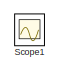
[diagram: root canvas - part 1/2, top left region]
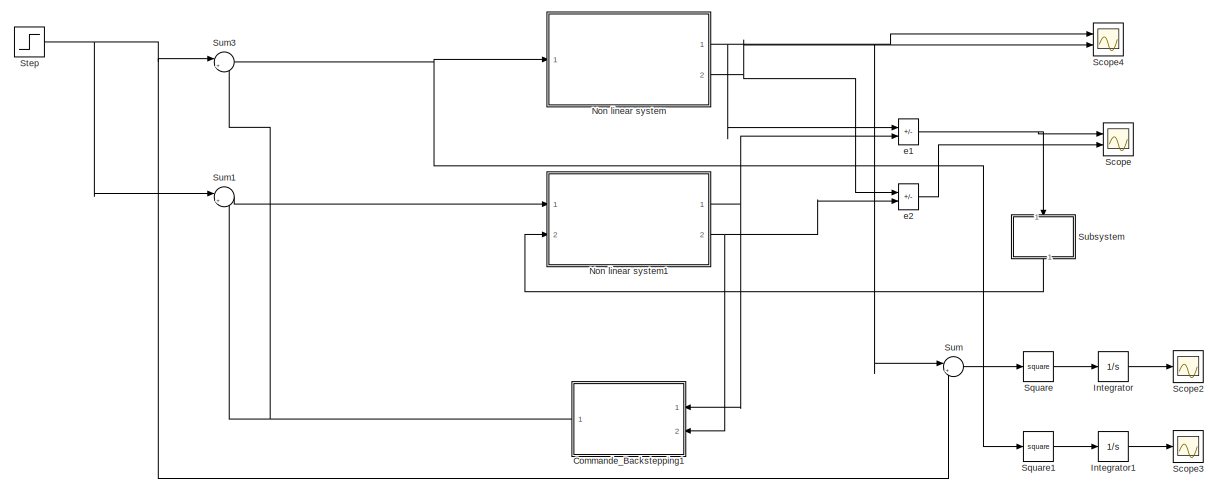
[diagram: root canvas - part 2/2, bottom right region]
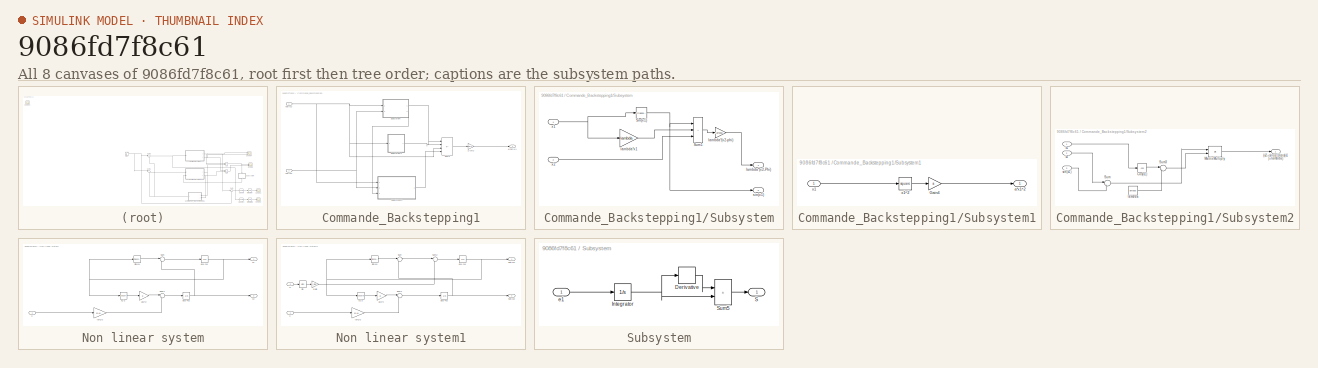
[diagram: thumbnail index - all 8 canvases of the model, root first then tree order]
MODEL slx_9086fd7f8c61
KIND model
CONFIG AbsTol = auto
CONFIG EnableMultiTasking = off
CONFIG FixedStep = auto
CONFIG MaxStep = auto
CONFIG MinStep = auto
CONFIG RelTol = 1e-3
CONFIG SampleTimeConstraint = Unconstrained
CONFIG Solver = VariableStepAuto
CONFIG SolverName = VariableStepAuto
CONFIG StartTime = 0.0
CONFIG StopTime = 10
BLOCK [SubSystem] Commande_Backstepping1
  NameLocation = top
  Ports = [2, 1]
  RequestExecContextInheritance = off
BLOCK [Gain] Commande_Backstepping1/1//(b+1)
  Gain = 1/(b+1)
BLOCK [SubSystem] Commande_Backstepping1/Subsystem
  Ports = [2, 2]
  RequestExecContextInheritance = off
BLOCK [Trigonometry] Commande_Backstepping1/Subsystem/Sin(x1)
  Ports = [1, 1]
BLOCK [Sum] Commande_Backstepping1/Subsystem/Sum1
  IconShape = rectangular
  Inputs = |+++
  Ports = [3, 1]
BLOCK [Outport] Commande_Backstepping1/Subsystem/lambda*(x2-Phi)
BLOCK [Gain] Commande_Backstepping1/Subsystem/lambda*(x2-phi)
  Gain = lambda
BLOCK [Gain] Commande_Backstepping1/Subsystem/lambda*x1
  Gain = lambda
BLOCK [Outport] Commande_Backstepping1/Subsystem/sin(x1)
  Port = 2
BLOCK [Inport] Commande_Backstepping1/Subsystem/x1
BLOCK [Inport] Commande_Backstepping1/Subsystem/x2
  Port = 2
BLOCK [SubSystem] Commande_Backstepping1/Subsystem1
  Ports = [1, 1]
  RequestExecContextInheritance = off
BLOCK [Gain] Commande_Backstepping1/Subsystem1/Gain4
  Gain = a
BLOCK [Outport] Commande_Backstepping1/Subsystem1/a*x1^2
BLOCK [Inport] Commande_Backstepping1/Subsystem1/x1 
BLOCK [Math] Commande_Backstepping1/Subsystem1/x1^2
  Operator = square
  Ports = [1, 1]
BLOCK [SubSystem] Commande_Backstepping1/Subsystem2
  Ports = [3, 1]
  RequestExecContextInheritance = off
BLOCK [Outport] Commande_Backstepping1/Subsystem2/(x2+sin(x1))(cos(x1)+lambda)
BLOCK [Trigonometry] Commande_Backstepping1/Subsystem2/Cos(x1)
  Operator = cos
  Ports = [1, 1]
BLOCK [Product] Commande_Backstepping1/Subsystem2/Matrix Multiply
  Ports = [2, 1]
BLOCK [Sum] Commande_Backstepping1/Subsystem2/Sum
  Inputs = |++
  Ports = [2, 1]
BLOCK [Sum] Commande_Backstepping1/Subsystem2/Sum3
  Inputs = |++
  Ports = [2, 1]
BLOCK [Constant] Commande_Backstepping1/Subsystem2/lambda
  OutDataTypeStr = Inherit: Inherit via back propagation
  Value = lambda
BLOCK [Inport] Commande_Backstepping1/Subsystem2/sin(x1)
  Port = 3
BLOCK [Inport] Commande_Backstepping1/Subsystem2/x1 
BLOCK [Inport] Commande_Backstepping1/Subsystem2/x2
  Port = 2
BLOCK [Sum] Commande_Backstepping1/Sum2
  IconShape = rectangular
  Inputs = |----
  Ports = [4, 1]
BLOCK [Inport] Commande_Backstepping1/hat(x1)
BLOCK [Inport] Commande_Backstepping1/hat(x2)
  Port = 2
BLOCK [Outport] Commande_Backstepping1/u(hat(x))
BLOCK [Integrator] Integrator
  Ports = [1, 1]
BLOCK [Integrator] Integrator1
  Ports = [1, 1]
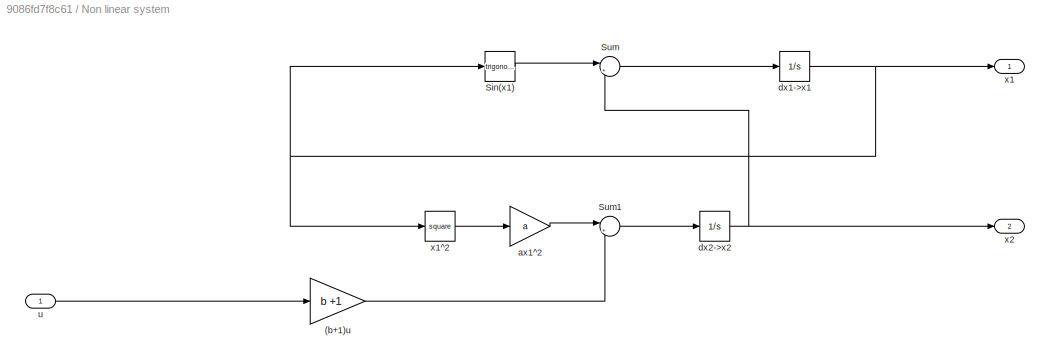
BLOCK [SubSystem] Non linear system
  Ports = [1, 2]
  RequestExecContextInheritance = off
BLOCK [Gain] Non linear system/(b+1)u
  Gain = b +1
BLOCK [Trigonometry] Non linear system/Sin(x1)
  Ports = [1, 1]
BLOCK [Sum] Non linear system/Sum
  Inputs = |++
  Ports = [2, 1]
BLOCK [Sum] Non linear system/Sum1
  Inputs = |++
  Ports = [2, 1]
BLOCK [Gain] Non linear system/ax1^2
  Gain = a
BLOCK [Integrator] Non linear system/dx1->x1
  Ports = [1, 1]
BLOCK [Integrator] Non linear system/dx2->x2
  Ports = [1, 1]
BLOCK [Inport] Non linear system/u
BLOCK [Outport] Non linear system/x1
BLOCK [Math] Non linear system/x1^2
  Operator = square
  Ports = [1, 1]
BLOCK [Outport] Non linear system/x2
  Port = 2
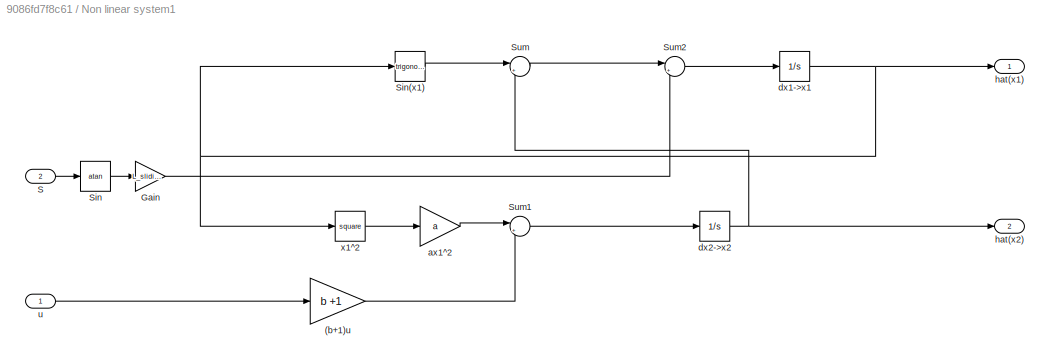
BLOCK [SubSystem] Non linear system1
  Ports = [2, 2]
  RequestExecContextInheritance = off
BLOCK [Gain] Non linear system1/(b+1)u
  Gain = b +1
BLOCK [Gain] Non linear system1/Gain
  Gain = L_sliding_back
BLOCK [Inport] Non linear system1/S
  Port = 2
BLOCK [Trigonometry] Non linear system1/Sin
  Operator = atan
  Ports = [1, 1]
BLOCK [Trigonometry] Non linear system1/Sin(x1)
  Ports = [1, 1]
BLOCK [Sum] Non linear system1/Sum
  Inputs = |++
  Ports = [2, 1]
BLOCK [Sum] Non linear system1/Sum1
  Inputs = |++
  Ports = [2, 1]
BLOCK [Sum] Non linear system1/Sum2
  Inputs = |++
  Ports = [2, 1]
BLOCK [Gain] Non linear system1/ax1^2
  Gain = a
BLOCK [Integrator] Non linear system1/dx1->x1
  InitialCondition = 1
  Ports = [1, 1]
BLOCK [Integrator] Non linear system1/dx2->x2
  InitialCondition = 1
  Ports = [1, 1]
BLOCK [Outport] Non linear system1/hat(x1)
BLOCK [Outport] Non linear system1/hat(x2)
  Port = 2
BLOCK [Inport] Non linear system1/u
BLOCK [Math] Non linear system1/x1^2
  Operator = square
  Ports = [1, 1]
BLOCK [Scope] Scope
  Floating = off
  NumInputPorts = 2
  Ports = [2]
  ScopeSpecificationString = Simulink.scopes.TimeScopeBlockCfg('CurrentConfiguration', extmgr.ConfigurationSet(extmgr.Configuration('Core','General UI',true),extmgr.Configuration('Core','Source UI',true),extmgr.Configuration('Sources','WiredSimulink',true,'DataLoggingVariableName','ScopeData1'),extmgr.Configuration('Visuals','Time Domain',true,'SerializedDisplays',{struct('MinYLimReal','-1.20483','MaxYLimReal','0.14572','YLab...<+1364ch>
BLOCK [Scope] Scope1
  Commented = on
  Floating = off
  NumInputPorts = 1
  Ports = [1]
  ScopeSpecificationString = Simulink.scopes.TimeScopeBlockCfg('CurrentConfiguration', extmgr.ConfigurationSet(extmgr.Configuration('Core','General UI',true),extmgr.Configuration('Core','Source UI',true),extmgr.Configuration('Sources','WiredSimulink',true),extmgr.Configuration('Visuals','Time Domain',true,'SerializedDisplays',{struct('MinYLimReal','-0.43357','MaxYLimReal','1.71484','YLabelReal','','MinYLimMag','0.00000','MaxY...<+1320ch>
BLOCK [Scope] Scope2
  Floating = off
  NumInputPorts = 1
  Ports = [1]
  ScopeSpecificationString = Simulink.scopes.TimeScopeBlockCfg('CurrentConfiguration', extmgr.ConfigurationSet(extmgr.Configuration('Core','General UI',true),extmgr.Configuration('Core','Source UI',true),extmgr.Configuration('Sources','WiredSimulink',true,'DataLoggingVariableName','ScopeData1'),extmgr.Configuration('Visuals','Time Domain',true,'SerializedDisplays',{struct('MinYLimReal','-0.31713','MaxYLimReal','2.8542','YLabe...<+1365ch>
BLOCK [Scope] Scope3
  Floating = off
  NumInputPorts = 1
  Ports = [1]
  ScopeSpecificationString = Simulink.scopes.TimeScopeBlockCfg('CurrentConfiguration', extmgr.ConfigurationSet(extmgr.Configuration('Core','General UI',true),extmgr.Configuration('Core','Source UI',true),extmgr.Configuration('Sources','WiredSimulink',true,'DataLoggingVariableName','ScopeData2'),extmgr.Configuration('Visuals','Time Domain',true,'SerializedDisplays',{struct('MinYLimReal','-0.09495','MaxYLimReal','0.85457','YLab...<+1370ch>
BLOCK [Scope] Scope4
  Floating = off
  NumInputPorts = 2
  Ports = [2]
  ScopeSpecificationString = Simulink.scopes.TimeScopeBlockCfg('CurrentConfiguration', extmgr.ConfigurationSet(extmgr.Configuration('Core','General UI',true),extmgr.Configuration('Core','Source UI',true),extmgr.Configuration('Sources','WiredSimulink',true,'DataLoggingVariableName','ScopeData1'),extmgr.Configuration('Visuals','Time Domain',true,'SerializedDisplays',{struct('MinYLimReal','-0.72457','MaxYLimReal','0.72027','YLab...<+1400ch>
BLOCK [Math] Square
  Operator = square
  Ports = [1, 1]
BLOCK [Math] Square1
  Operator = square
  Ports = [1, 1]
BLOCK [Step] Step
  SampleTime = 0
  Time = 0
BLOCK [SubSystem] Subsystem
  NameLocation = left
  Ports = [1, 1]
  RequestExecContextInheritance = off
BLOCK [Derivative] Subsystem/Derivative
BLOCK [Integrator] Subsystem/Integrator
  Ports = [1, 1]
BLOCK [Outport] Subsystem/S
BLOCK [Sum] Subsystem/Sum5
  IconShape = rectangular
  Inputs = |++
  Ports = [2, 1]
BLOCK [Inport] Subsystem/e1
BLOCK [Sum] Sum
  Inputs = |++
  Ports = [2, 1]
BLOCK [Sum] Sum1
  Inputs = |++
  Ports = [2, 1]
BLOCK [Sum] Sum3
  Inputs = |++
  Ports = [2, 1]
BLOCK [Sum] e1
  IconShape = rectangular
  Inputs = |+-
  Ports = [2, 1]
BLOCK [Sum] e2
  IconShape = rectangular
  Inputs = |+-
  Ports = [2, 1]
LINE Commande_Backstepping1/1//(b+1):1 -> Commande_Backstepping1/u(hat(x)):1
NET Commande_Backstepping1/Subsystem/Sin(x1):1 -> Commande_Backstepping1/Subsystem/Sum1:1, Commande_Backstepping1/Subsystem/sin(x1):1
LINE Commande_Backstepping1/Subsystem/Sum1:1 -> Commande_Backstepping1/Subsystem/lambda*(x2-phi):1
LINE Commande_Backstepping1/Subsystem/lambda*(x2-phi):1 -> Commande_Backstepping1/Subsystem/lambda*(x2-Phi):1
LINE Commande_Backstepping1/Subsystem/lambda*x1:1 -> Commande_Backstepping1/Subsystem/Sum1:2
NET Commande_Backstepping1/Subsystem/x1:1 -> Commande_Backstepping1/Subsystem/Sin(x1):1, Commande_Backstepping1/Subsystem/lambda*x1:1
LINE Commande_Backstepping1/Subsystem/x2:1 -> Commande_Backstepping1/Subsystem/Sum1:3
LINE Commande_Backstepping1/Subsystem1/Gain4:1 -> Commande_Backstepping1/Subsystem1/a*x1^2:1
LINE Commande_Backstepping1/Subsystem1/x1 :1 -> Commande_Backstepping1/Subsystem1/x1^2:1
LINE Commande_Backstepping1/Subsystem1/x1^2:1 -> Commande_Backstepping1/Subsystem1/Gain4:1
LINE Commande_Backstepping1/Subsystem1:1 -> Commande_Backstepping1/Sum2:2
LINE Commande_Backstepping1/Subsystem2/Cos(x1):1 -> Commande_Backstepping1/Subsystem2/Sum3:1
LINE Commande_Backstepping1/Subsystem2/Matrix Multiply:1 -> Commande_Backstepping1/Subsystem2/(x2+sin(x1))(cos(x1)+lambda):1
LINE Commande_Backstepping1/Subsystem2/Sum3:1 -> Commande_Backstepping1/Subsystem2/Matrix Multiply:2
LINE Commande_Backstepping1/Subsystem2/Sum:1 -> Commande_Backstepping1/Subsystem2/Matrix Multiply:1
LINE Commande_Backstepping1/Subsystem2/lambda:1 -> Commande_Backstepping1/Subsystem2/Sum3:2
LINE Commande_Backstepping1/Subsystem2/sin(x1):1 -> Commande_Backstepping1/Subsystem2/Sum:2
LINE Commande_Backstepping1/Subsystem2/x1 :1 -> Commande_Backstepping1/Subsystem2/Cos(x1):1
LINE Commande_Backstepping1/Subsystem2/x2:1 -> Commande_Backstepping1/Subsystem2/Sum:1
LINE Commande_Backstepping1/Subsystem2:1 -> Commande_Backstepping1/Sum2:4
LINE Commande_Backstepping1/Subsystem:1 -> Commande_Backstepping1/Sum2:1
LINE Commande_Backstepping1/Subsystem:2 -> Commande_Backstepping1/Subsystem2:3
LINE Commande_Backstepping1/Sum2:1 -> Commande_Backstepping1/1//(b+1):1
NET Commande_Backstepping1/hat(x1):1 -> Commande_Backstepping1/Subsystem1:1, Commande_Backstepping1/Subsystem2:1, Commande_Backstepping1/Subsystem:1, Commande_Backstepping1/Sum2:3
NET Commande_Backstepping1/hat(x2):1 -> Commande_Backstepping1/Subsystem2:2, Commande_Backstepping1/Subsystem:2
NET Commande_Backstepping1:1 -> Sum1:2, Sum3:2
LINE Integrator1:1 -> Scope3:1
LINE Integrator:1 -> Scope2:1
LINE Non linear system/(b+1)u:1 -> Non linear system/Sum1:2
LINE Non linear system/Sin(x1):1 -> Non linear system/Sum:1
LINE Non linear system/Sum1:1 -> Non linear system/dx2->x2:1
LINE Non linear system/Sum:1 -> Non linear system/dx1->x1:1
LINE Non linear system/ax1^2:1 -> Non linear system/Sum1:1
NET Non linear system/dx1->x1:1 -> Non linear system/Sin(x1):1, Non linear system/x1:1, Non linear system/x1^2:1
NET Non linear system/dx2->x2:1 -> Non linear system/Sum:2, Non linear system/x2:1
LINE Non linear system/u:1 -> Non linear system/(b+1)u:1
LINE Non linear system/x1^2:1 -> Non linear system/ax1^2:1
LINE Non linear system1/(b+1)u:1 -> Non linear system1/Sum1:2
LINE Non linear system1/Gain:1 -> Non linear system1/Sum2:2
LINE Non linear system1/S:1 -> Non linear system1/Sin:1
LINE Non linear system1/Sin(x1):1 -> Non linear system1/Sum:1
LINE Non linear system1/Sin:1 -> Non linear system1/Gain:1
LINE Non linear system1/Sum1:1 -> Non linear system1/dx2->x2:1
LINE Non linear system1/Sum2:1 -> Non linear system1/dx1->x1:1
LINE Non linear system1/Sum:1 -> Non linear system1/Sum2:1
LINE Non linear system1/ax1^2:1 -> Non linear system1/Sum1:1
NET Non linear system1/dx1->x1:1 -> Non linear system1/Sin(x1):1, Non linear system1/hat(x1):1, Non linear system1/x1^2:1
NET Non linear system1/dx2->x2:1 -> Non linear system1/Sum:2, Non linear system1/hat(x2):1
LINE Non linear system1/u:1 -> Non linear system1/(b+1)u:1
LINE Non linear system1/x1^2:1 -> Non linear system1/ax1^2:1
NET Non linear system1:1 -> Commande_Backstepping1:1, e1:2
NET Non linear system1:2 -> Commande_Backstepping1:2, e2:2
NET Non linear system:1 -> Scope4:1, Sum:1, e1:1
NET Non linear system:2 -> Scope4:2, e2:1
LINE Square1:1 -> Integrator1:1
LINE Square:1 -> Integrator:1
NET Step:1 -> Sum1:1, Sum3:1, Sum:2
LINE Subsystem/Derivative:1 -> Subsystem/Sum5:1
NET Subsystem/Integrator:1 -> Subsystem/Derivative:1, Subsystem/Sum5:2
LINE Subsystem/Sum5:1 -> Subsystem/S:1
LINE Subsystem/e1:1 -> Subsystem/Integrator:1
LINE Subsystem:1 -> Non linear system1:2
LINE Sum1:1 -> Non linear system1:1
NET Sum3:1 -> Non linear system:1, Square1:1
LINE Sum:1 -> Square:1
NET e1:1 -> Scope:1, Subsystem:1
LINE e2:1 -> Scope:2
note: NET lines group one-source signal fan-out (src -> all destinations, sorted); 1:1 wires keep LINE
